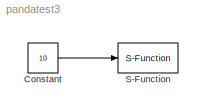
MODEL pandatest3
KIND model
BLOCK [Constant] Constant
  OutDataTypeMode = uint32
  OutDataTypeStr = uint32
  Value = 10
BLOCK [S-Function] S-Function
  EnableBusSupport = off
  FunctionName = printOut
  Ports = [1]
LINE Constant:1 -> S-Function:1
